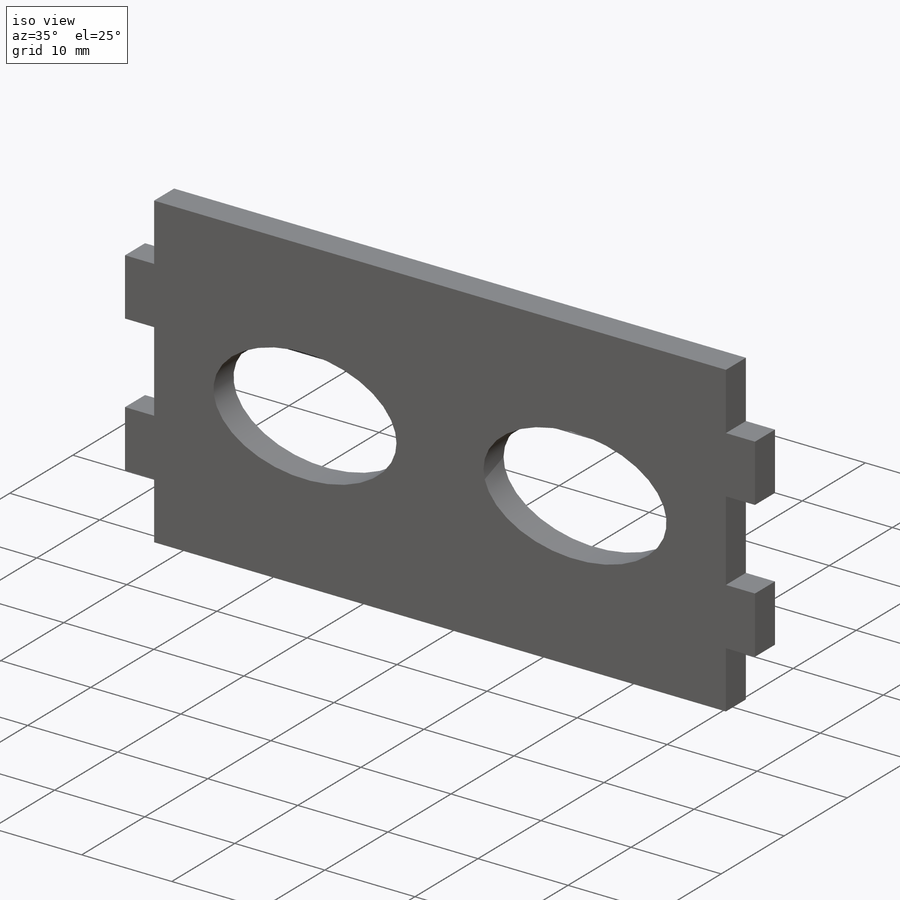
[diagram: iso view]
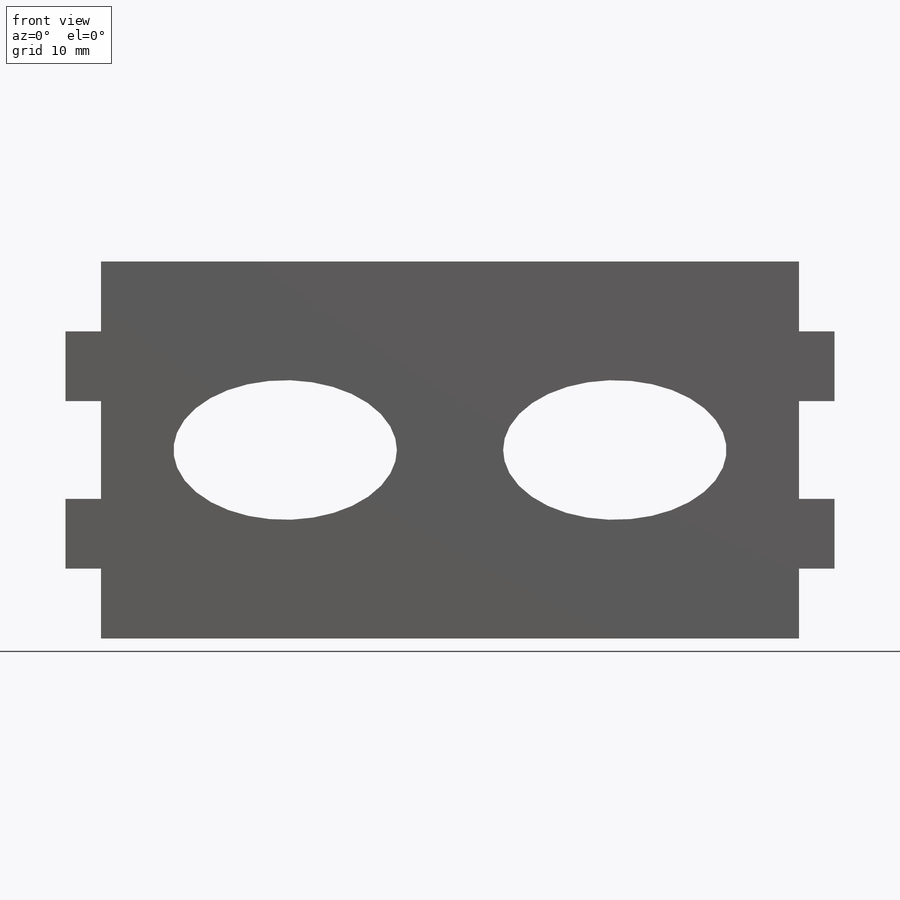
[diagram: front view]
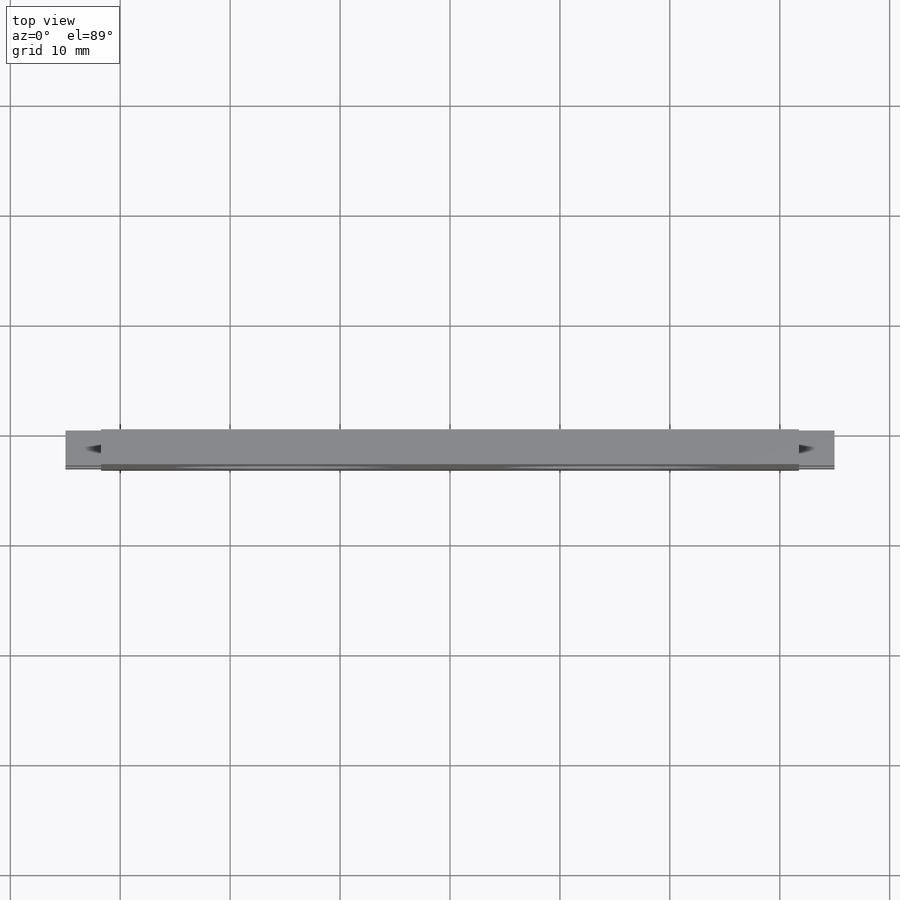
[diagram: top view]
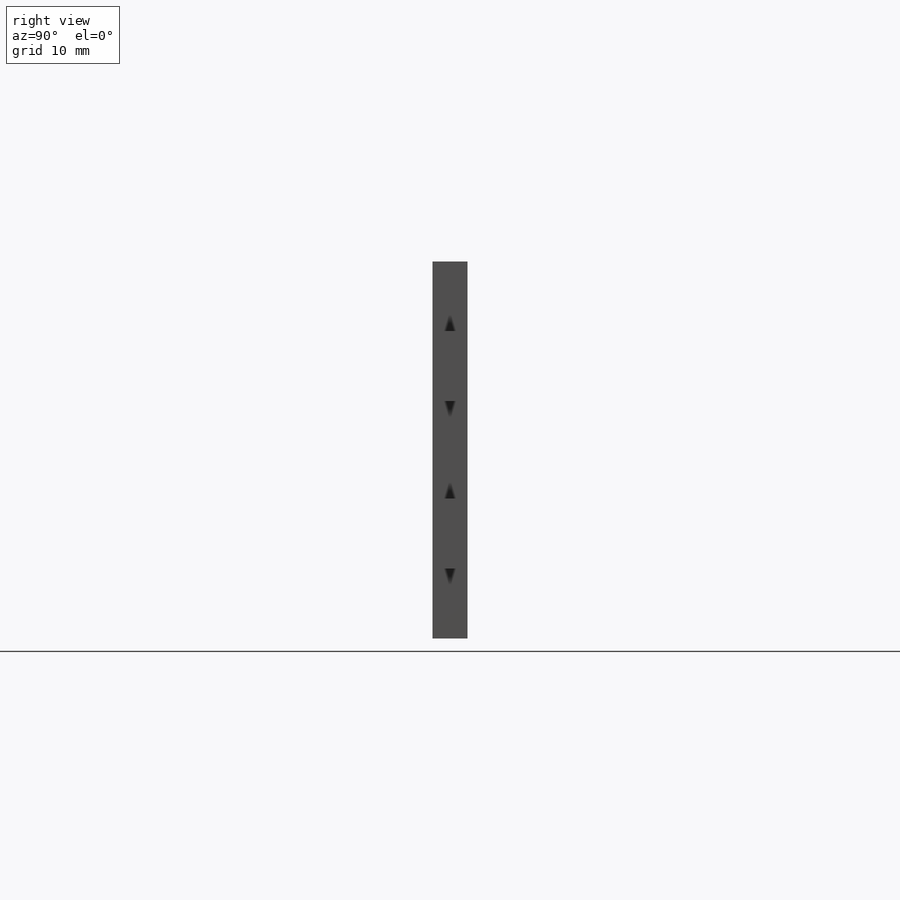
[diagram: right view]
SOLIDWORKS PART (.sldprt)
format: sldprt  version: not decoded by parser v0  size: 294,912 bytes
history: native  units: mm
features: sketch x3, extrude x2, mirror x2, material x1, cut_extrude x1 (+16 scaffold rows collapsed)
feature tree (25):
  scaffold x16  (default folders/planes/origin — collapsed)
  material  "Material <not specified>"
  sketch  "Sketch1"  dims[D1=63.5mm D2=34.29mm]
  extrude  "Boss-Extrude1"  Depth=3.175mm
  sketch  "Sketch2"  dims[D1=3.2258mm D2=6.35mm D3=6.35mm D4=3.2258mm D5=6.35mm D6=8.89mm]
  extrude  "Boss-Extrude2"  Depth=3.175mm
  mirror  "Mirror1"
  sketch  "Sketch3"  dims[c1.D1=12.7mm c1.D2=12.7mm c1.D3=8.255mm c2.D1=6.35mm c2.D2=10.16mm]
  cut_extrude  "cut for lip motor cables"  [1 undecoded]
  mirror  "Mirror2"
decode coverage: 5 of 8 modeling features carry decoded parameters
note: 1 parameter value undecoded
note: suppression state not decoded; provenance and decode notes live in map.json
